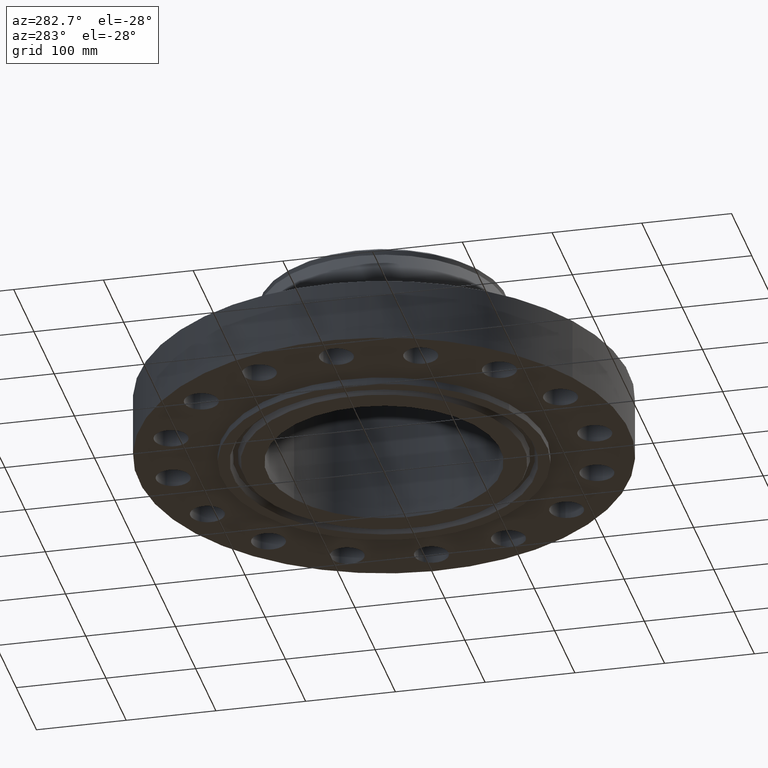
[diagram: clean part render]
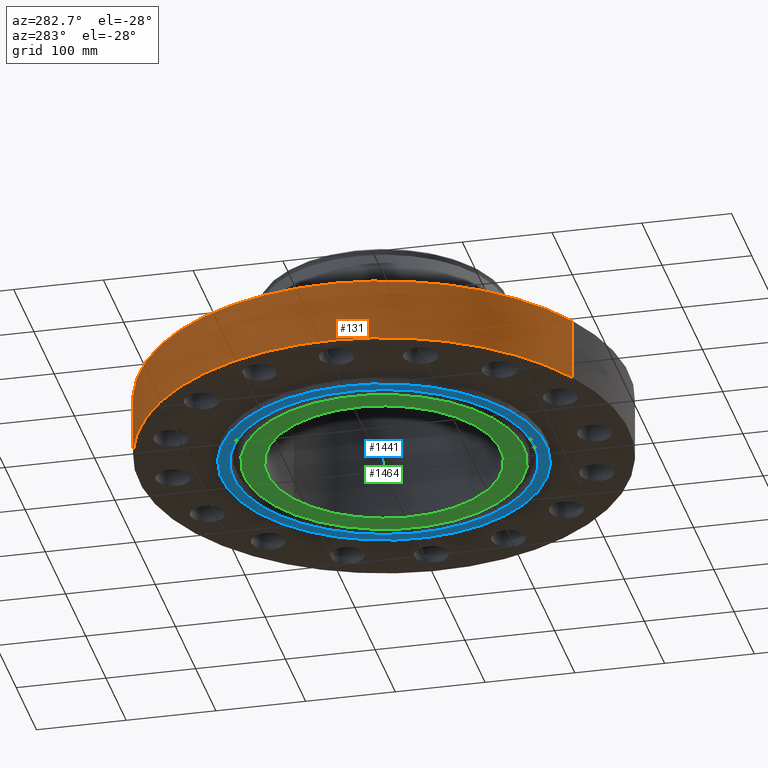
[diagram: same view with three faces highlighted in distinct colors, each labeled with its STEP entity id]
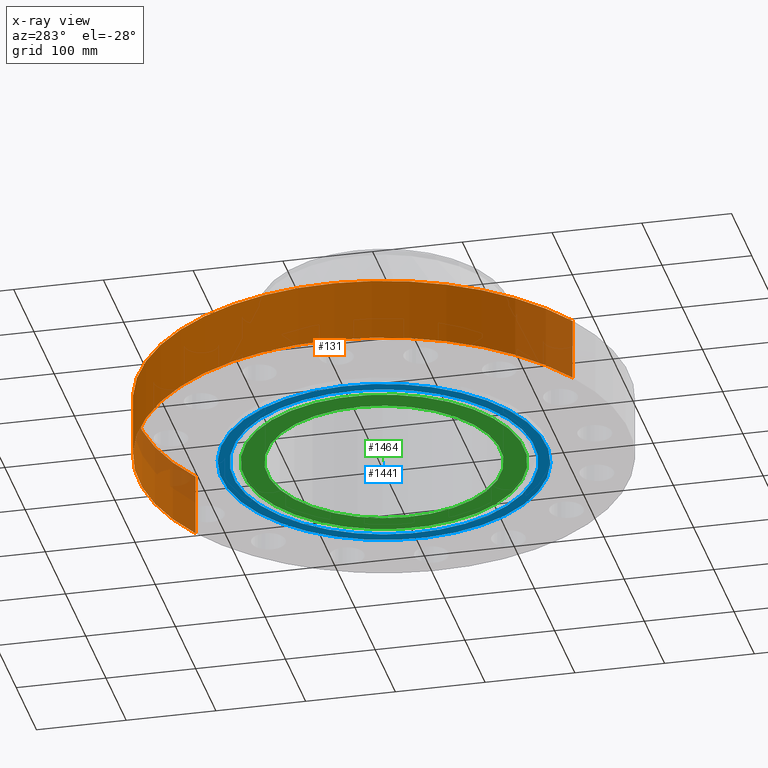
[diagram: x-ray of the same camera — body ghosted, the three highlighted faces saturated]
A machine part, auxiliary view with three faces highlighted in distinct colors.
The next image is the same camera in x-ray (body ghosted, the three faces saturated) — at least one of them is partly hidden behind the body in this view.
Their STEP definitions:

[orange] entity #131 — the highlighted cylindrical surface (partial cylindrical patch) has radius 273.05 mm, axis along (0, 0, -1).
#95=AXIS2_PLACEMENT_3D('Cylinder Axis2P3D',#92,#93,#94) ;
#99=AXIS2_PLACEMENT_3D('Circle Axis2P3D',#97,#98,$) ;
#115=AXIS2_PLACEMENT_3D('Circle Axis2P3D',#113,#114,$) ;
#92=CARTESIAN_POINT('Axis2P3D Location',(0.,0.,3.46875000001)) ;
#97=CARTESIAN_POINT('Axis2P3D Location',(0.,0.,1.1189649382E-015)) ;
#101=CARTESIAN_POINT('Vertex',(-5.15382454002,-9.43401254036,1.1189649382E-015)) ;
#103=CARTESIAN_POINT('Vertex',(5.15382454002,9.43401254036,1.1189649382E-015)) ;
#106=CARTESIAN_POINT('Line Origine',(-5.15382454002,-9.43401254036,1.37500000001)) ;
#110=CARTESIAN_POINT('Vertex',(-5.15382454002,-9.43401254036,2.75000000001)) ;
#113=CARTESIAN_POINT('Axis2P3D Location',(0.,0.,2.75000000001)) ;
#117=CARTESIAN_POINT('Vertex',(5.15382454002,9.43401254036,2.75000000001)) ;
#120=CARTESIAN_POINT('Line Origine',(5.15382454002,9.43401254036,1.37500000001)) ;
#93=DIRECTION('Axis2P3D Direction',(0.,0.,-0.0393700787402)) ;
#94=DIRECTION('Axis2P3D XDirection',(0.0188750212049,0.0345504945626,0.)) ;
#98=DIRECTION('Axis2P3D Direction',(0.,0.,-0.0393700787402)) ;
#107=DIRECTION('Vector Direction',(0.,0.,-0.0393700787402)) ;
#114=DIRECTION('Axis2P3D Direction',(0.,0.,-0.0393700787402)) ;
#121=DIRECTION('Vector Direction',(0.,0.,-0.0393700787402)) ;
#108=VECTOR('Line Direction',#107,0.0393700787402) ;
#122=VECTOR('Line Direction',#121,0.0393700787402) ;
#126=ORIENTED_EDGE('',*,*,#105,.F.) ;
#127=ORIENTED_EDGE('',*,*,#112,.T.) ;
#128=ORIENTED_EDGE('',*,*,#119,.T.) ;
#129=ORIENTED_EDGE('',*,*,#124,.F.) ;
#131=ADVANCED_FACE('PartBody',(#130),#96,.T.) ;
#100=CIRCLE('generated circle',#99,10.75) ;
#116=CIRCLE('generated circle',#115,10.75) ;
#96=CYLINDRICAL_SURFACE('generated cylinder',#95,10.75) ;
#105=EDGE_CURVE('',#102,#104,#100,.T.) ;
#112=EDGE_CURVE('',#102,#111,#109,.F.) ;
#119=EDGE_CURVE('',#111,#118,#116,.T.) ;
#124=EDGE_CURVE('',#104,#118,#123,.F.) ;
#125=EDGE_LOOP('',(#126,#127,#128,#129)) ;
#130=FACE_OUTER_BOUND('',#125,.T.) ;
#109=LINE('Line',#106,#108) ;
#123=LINE('Line',#120,#122) ;
#102=VERTEX_POINT('',#101) ;
#104=VERTEX_POINT('',#103) ;
#111=VERTEX_POINT('',#110) ;
#118=VERTEX_POINT('',#117) ;

[blue] entity #1441 — the highlighted planar face has unit normal (0, 0, -1).
#431=AXIS2_PLACEMENT_3D('Circle Axis2P3D',#429,#430,$) ;
#466=AXIS2_PLACEMENT_3D('Circle Axis2P3D',#464,#465,$) ;
#1417=AXIS2_PLACEMENT_3D('Plane Axis2P3D',#1414,#1415,#1416) ;
#1425=AXIS2_PLACEMENT_3D('Circle Axis2P3D',#1423,#1424,$) ;
#1434=AXIS2_PLACEMENT_3D('Circle Axis2P3D',#1432,#1433,$) ;
#429=CARTESIAN_POINT('Axis2P3D Location',(0.,0.,-0.312500000001)) ;
#433=CARTESIAN_POINT('Vertex',(-3.41590696257,-6.25277575349,-0.312500000001)) ;
#435=CARTESIAN_POINT('Vertex',(3.41590696257,6.25277575349,-0.312500000001)) ;
#464=CARTESIAN_POINT('Axis2P3D Location',(0.,0.,-0.312500000001)) ;
#1414=CARTESIAN_POINT('Axis2P3D Location',(0.,5.12500000002,-0.312500000001)) ;
#1423=CARTESIAN_POINT('Axis2P3D Location',(0.,0.,-0.312500000001)) ;
#1427=CARTESIAN_POINT('Vertex',(3.16871515486,-5.80029418458,-0.312500000001)) ;
#1429=CARTESIAN_POINT('Vertex',(-3.16871515486,5.80029418458,-0.312500000001)) ;
#1432=CARTESIAN_POINT('Axis2P3D Location',(-2.79741234551E-016,-1.1189649382E-015,-0.312500000001)) ;
#430=DIRECTION('Axis2P3D Direction',(0.,0.,-0.0393700787402)) ;
#465=DIRECTION('Axis2P3D Direction',(0.,0.,-0.0393700787402)) ;
#1415=DIRECTION('Axis2P3D Direction',(0.,0.,-0.0393700787402)) ;
#1416=DIRECTION('Axis2P3D XDirection',(0.0393700787402,0.,0.)) ;
#1424=DIRECTION('Axis2P3D Direction',(0.,0.,-0.0393700787402)) ;
#1433=DIRECTION('Axis2P3D Direction',(0.,0.,-0.0393700787402)) ;
#1420=ORIENTED_EDGE('',*,*,#437,.T.) ;
#1421=ORIENTED_EDGE('',*,*,#468,.T.) ;
#1438=ORIENTED_EDGE('',*,*,#1431,.F.) ;
#1439=ORIENTED_EDGE('',*,*,#1436,.F.) ;
#1440=FACE_BOUND('',#1437,.T.) ;
#1441=ADVANCED_FACE('PartBody',(#1422,#1440),#1418,.T.) ;
#432=CIRCLE('generated circle',#431,7.12500000003) ;
#467=CIRCLE('generated circle',#466,7.12500000003) ;
#1426=CIRCLE('generated circle',#1425,6.60940000003) ;
#1435=CIRCLE('generated circle',#1434,6.60940000003) ;
#437=EDGE_CURVE('',#434,#436,#432,.T.) ;
#468=EDGE_CURVE('',#436,#434,#467,.T.) ;
#1431=EDGE_CURVE('',#1428,#1430,#1426,.T.) ;
#1436=EDGE_CURVE('',#1430,#1428,#1435,.T.) ;
#1419=EDGE_LOOP('',(#1420,#1421)) ;
#1437=EDGE_LOOP('',(#1438,#1439)) ;
#1422=FACE_OUTER_BOUND('',#1419,.T.) ;
#1418=PLANE('',#1417) ;
#434=VERTEX_POINT('',#433) ;
#436=VERTEX_POINT('',#435) ;
#1428=VERTEX_POINT('',#1427) ;
#1430=VERTEX_POINT('',#1429) ;

[green] entity #1464 — the highlighted planar face has unit normal (0, 0, -1).
#363=AXIS2_PLACEMENT_3D('Circle Axis2P3D',#361,#362,$) ;
#387=AXIS2_PLACEMENT_3D('Circle Axis2P3D',#385,#386,$) ;
#1417=AXIS2_PLACEMENT_3D('Plane Axis2P3D',#1414,#1415,#1416) ;
#1444=AXIS2_PLACEMENT_3D('Circle Axis2P3D',#1442,#1443,$) ;
#1453=AXIS2_PLACEMENT_3D('Circle Axis2P3D',#1451,#1452,$) ;
#358=CARTESIAN_POINT('Vertex',(2.45705588536,4.49761062971,-0.312500000001)) ;
#361=CARTESIAN_POINT('Axis2P3D Location',(0.,0.,-0.312500000001)) ;
#365=CARTESIAN_POINT('Vertex',(-2.45705588536,-4.49761062971,-0.312500000001)) ;
#385=CARTESIAN_POINT('Axis2P3D Location',(0.,0.,-0.312500000001)) ;
#1414=CARTESIAN_POINT('Axis2P3D Location',(0.,5.12500000002,-0.312500000001)) ;
#1442=CARTESIAN_POINT('Axis2P3D Location',(5.59482469102E-016,-1.1189649382E-015,-0.312500000001)) ;
#1446=CARTESIAN_POINT('Vertex',(-2.94396046236,5.38888347957,-0.312500000001)) ;
#1448=CARTESIAN_POINT('Vertex',(2.94396046236,-5.38888347957,-0.312500000001)) ;
#1451=CARTESIAN_POINT('Axis2P3D Location',(-1.1189649382E-015,1.1189649382E-015,-0.312500000001)) ;
#362=DIRECTION('Axis2P3D Direction',(0.,0.,-0.0393700787402)) ;
#386=DIRECTION('Axis2P3D Direction',(0.,0.,-0.0393700787402)) ;
#1415=DIRECTION('Axis2P3D Direction',(0.,0.,-0.0393700787402)) ;
#1416=DIRECTION('Axis2P3D XDirection',(0.0393700787402,0.,0.)) ;
#1443=DIRECTION('Axis2P3D Direction',(0.,0.,-0.0393700787402)) ;
#1452=DIRECTION('Axis2P3D Direction',(0.,0.,-0.0393700787402)) ;
#1457=ORIENTED_EDGE('',*,*,#1450,.T.) ;
#1458=ORIENTED_EDGE('',*,*,#1455,.T.) ;
#1461=ORIENTED_EDGE('',*,*,#367,.F.) ;
#1462=ORIENTED_EDGE('',*,*,#389,.F.) ;
#1463=FACE_BOUND('',#1460,.T.) ;
#1464=ADVANCED_FACE('PartBody',(#1459,#1463),#1418,.T.) ;
#364=CIRCLE('generated circle',#363,5.12500000002) ;
#388=CIRCLE('generated circle',#387,5.12500000002) ;
#1445=CIRCLE('generated circle',#1444,6.14060000002) ;
#1454=CIRCLE('generated circle',#1453,6.14060000002) ;
#367=EDGE_CURVE('',#359,#366,#364,.T.) ;
#389=EDGE_CURVE('',#366,#359,#388,.T.) ;
#1450=EDGE_CURVE('',#1447,#1449,#1445,.T.) ;
#1455=EDGE_CURVE('',#1449,#1447,#1454,.T.) ;
#1456=EDGE_LOOP('',(#1457,#1458)) ;
#1460=EDGE_LOOP('',(#1461,#1462)) ;
#1459=FACE_OUTER_BOUND('',#1456,.T.) ;
#1418=PLANE('',#1417) ;
#359=VERTEX_POINT('',#358) ;
#366=VERTEX_POINT('',#365) ;
#1447=VERTEX_POINT('',#1446) ;
#1449=VERTEX_POINT('',#1448) ;